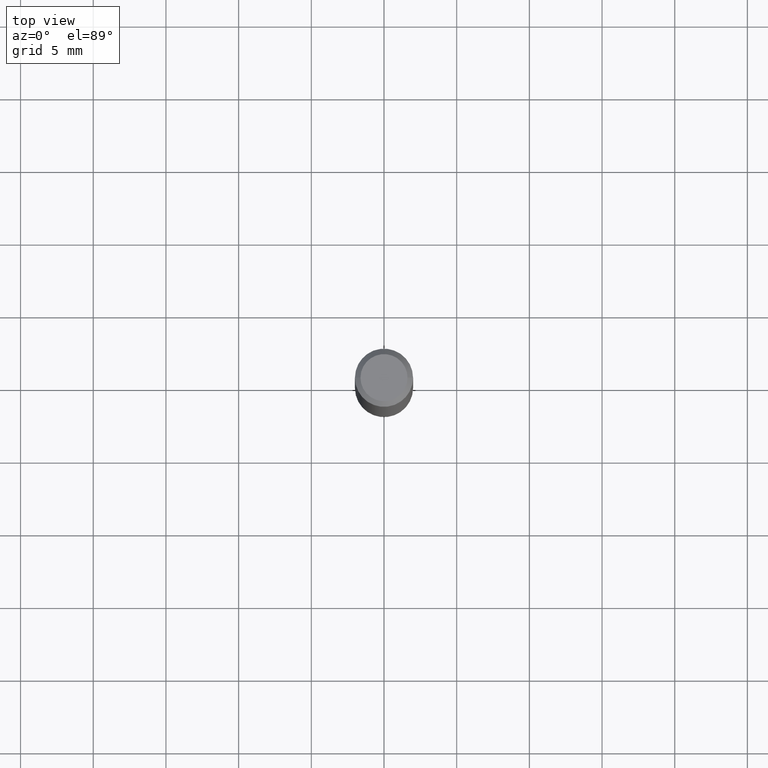
[diagram: clean part render]
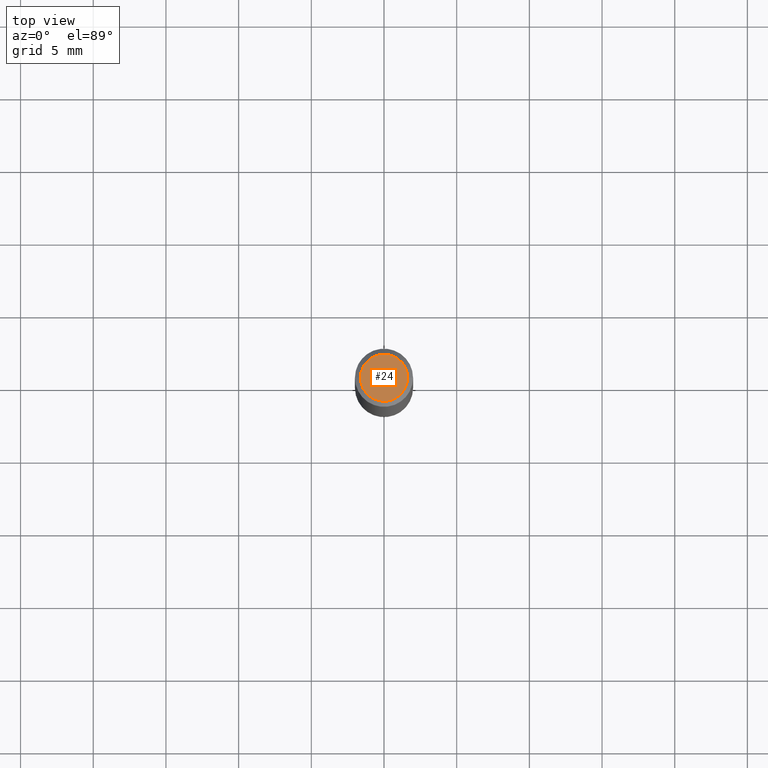
[diagram: same view with one face highlighted and labeled with its STEP entity id]
A machine part, top view. The second image highlights one B-rep face of the part: STEP entity #24.
In plain terms, the highlighted planar face has unit normal (0, -0, -1).
Its self-contained STEP definition (entity closure, byte-faithful):
#24 = ADVANCED_FACE ( 'NONE', ( #200 ), #411, .F. ) ;
#38 = CARTESIAN_POINT ( 'NONE',  ( 1.854924686453612983E-44, -2.648340846275329000E-30, -7.585149652132525386E-16 ) ) ;
#40 = DIRECTION ( 'NONE',  ( 1.000000000000000000, -6.982962677686265922E-15, 4.947888571036530338E-29 ) ) ;
#51 = DIRECTION ( 'NONE',  ( -1.000000000000000000, 6.982962677686265922E-15, -4.876176775795935793E-29 ) ) ;
#72 = DIRECTION ( 'NONE',  ( -2.445468806185136597E-29, 3.491481338843145583E-15, 1.000000000000000000 ) ) ;
#79 = CARTESIAN_POINT ( 'NONE',  ( -0.06375000000000000111, 4.713499807438215436E-16, -7.585149652132556940E-16 ) ) ;
#86 = AXIS2_PLACEMENT_3D ( 'NONE', #417, #317, #51 ) ;
#128 = ORIENTED_EDGE ( 'NONE', *, *, #306, .T. ) ;
#197 = VERTEX_POINT ( 'NONE', #361 ) ;
#200 = FACE_OUTER_BOUND ( 'NONE', #372, .T. ) ;
#219 = CIRCLE ( 'NONE', #325, 0.06375000000000000111 ) ;
#296 = ORIENTED_EDGE ( 'NONE', *, *, #418, .T. ) ;
#306 = EDGE_CURVE ( 'NONE', #197, #466, #219, .T. ) ;
#317 = DIRECTION ( 'NONE',  ( 2.438088387897960049E-29, -3.491481338843145188E-15, -1.000000000000000000 ) ) ;
#325 = AXIS2_PLACEMENT_3D ( 'NONE', #38, #72, #40 ) ;
#361 = CARTESIAN_POINT ( 'NONE',  ( 0.06375000000000000111, -5.149965923825465084E-16, -7.585149652132491859E-16 ) ) ;
#362 = DIRECTION ( 'NONE',  ( 1.000000000000000000, -6.982962677686265922E-15, 4.947888571036530338E-29 ) ) ;
#372 = EDGE_LOOP ( 'NONE', ( #296, #128 ) ) ;
#397 = CIRCLE ( 'NONE', #461, 0.06375000000000000111 ) ;
#411 = PLANE ( 'NONE',  #86 ) ;
#417 = CARTESIAN_POINT ( 'NONE',  ( 4.451638707024993845E-16, 0.06375000000000000111, -6.018394179578767011E-16 ) ) ;
#418 = EDGE_CURVE ( 'NONE', #466, #197, #397, .T. ) ;
#436 = CARTESIAN_POINT ( 'NONE',  ( 1.854924686453612983E-44, -2.648340846275329000E-30, -7.585149652132525386E-16 ) ) ;
#461 = AXIS2_PLACEMENT_3D ( 'NONE', #436, #462, #362 ) ;
#462 = DIRECTION ( 'NONE',  ( -2.445468806185136597E-29, 3.491481338843145583E-15, 1.000000000000000000 ) ) ;
#466 = VERTEX_POINT ( 'NONE', #79 ) ;